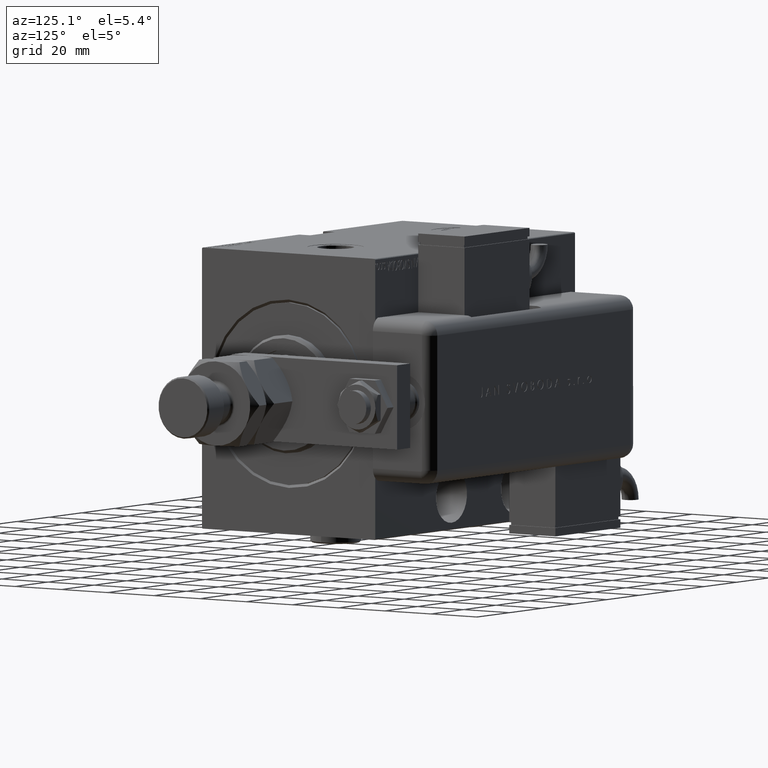
[diagram: clean part render]
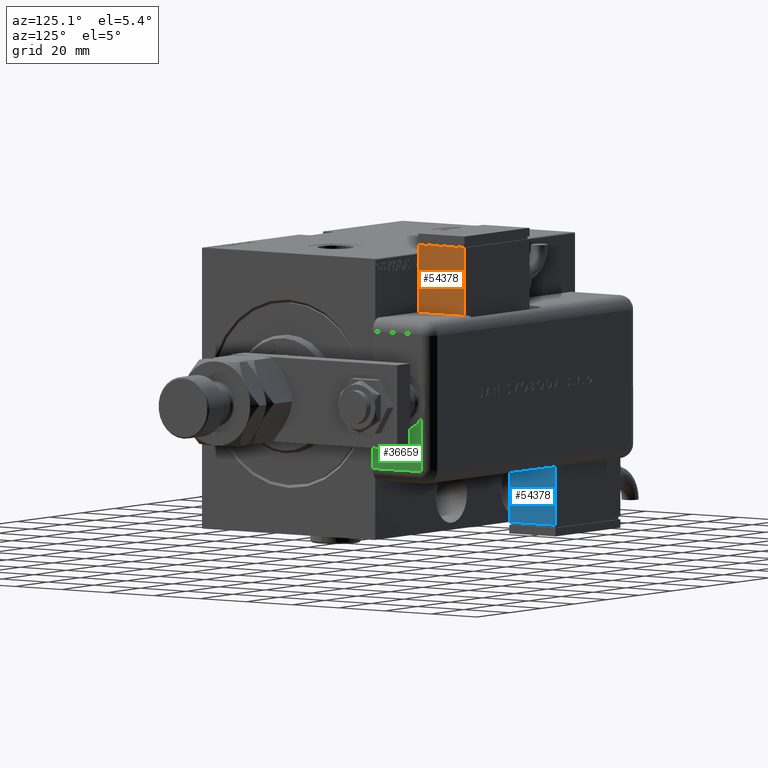
[diagram: same view with three faces highlighted in distinct colors, each labeled with its STEP entity id]
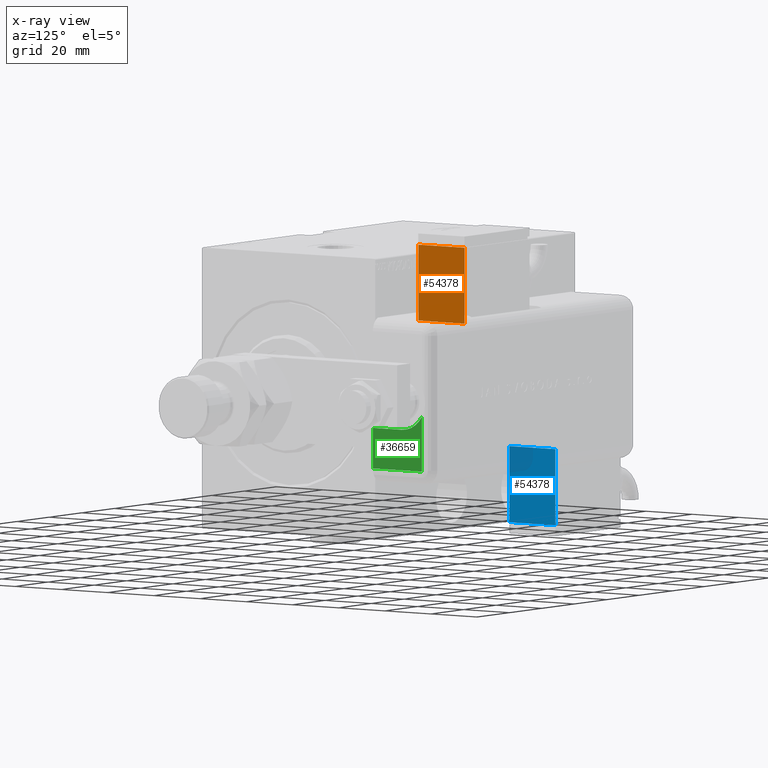
[diagram: x-ray of the same camera — body ghosted, the three highlighted faces saturated]
A machine part, auxiliary view with three faces highlighted in distinct colors.
The next image is the same camera in x-ray (body ghosted, the three faces saturated) — at least one of them is partly hidden behind the body in this view.
Their STEP definitions:

[orange] entity #54378 — the highlighted planar face has unit normal (-1, 0, 0).
#182 = CARTESIAN_POINT ( 'NONE',  ( 20.00000000000005329, -13.49999999999996092, 10.00000000000000000 ) ) ;
#2211 = VERTEX_POINT ( 'NONE', #23601 ) ;
#2471 = CARTESIAN_POINT ( 'NONE',  ( 20.00000000000005329, -13.49999999999996092, 10.00000000000000000 ) ) ;
#4457 = LINE ( 'NONE', #56988, #11107 ) ;
#7614 = EDGE_CURVE ( 'NONE', #8226, #2211, #4457, .T. ) ;
#8226 = VERTEX_POINT ( 'NONE', #182 ) ;
#10026 = VECTOR ( 'NONE', #17026, 1000.000000000000000 ) ;
#11107 = VECTOR ( 'NONE', #47907, 1000.000000000000000 ) ;
#12356 = LINE ( 'NONE', #41432, #10026 ) ;
#13466 = VERTEX_POINT ( 'NONE', #57032 ) ;
#15122 = DIRECTION ( 'NONE',  ( -1.000000000000000000, 1.284980352575412699E-16, 0.000000000000000000 ) ) ;
#17026 = DIRECTION ( 'NONE',  ( 1.284980352575412699E-16, 1.000000000000000000, 0.000000000000000000 ) ) ;
#22041 = ORIENTED_EDGE ( 'NONE', *, *, #45837, .F. ) ;
#23601 = CARTESIAN_POINT ( 'NONE',  ( 20.00000000000005329, -13.49999999999996092, -10.00000000000000000 ) ) ;
#23698 = VECTOR ( 'NONE', #41279, 1000.000000000000000 ) ;
#24807 = PLANE ( 'NONE',  #45508 ) ;
#28909 = DIRECTION ( 'NONE',  ( -1.284980352575412699E-16, -1.000000000000000000, 0.000000000000000000 ) ) ;
#29102 = CARTESIAN_POINT ( 'NONE',  ( 20.00000000000005684, 13.50000000000003730, 10.00000000000000000 ) ) ;
#30693 = ORIENTED_EDGE ( 'NONE', *, *, #7614, .T. ) ;
#31903 = LINE ( 'NONE', #55990, #23698 ) ;
#32824 = VERTEX_POINT ( 'NONE', #29102 ) ;
#33742 = EDGE_CURVE ( 'NONE', #2211, #13466, #12356, .T. ) ;
#38589 = FACE_OUTER_BOUND ( 'NONE', #45657, .T. ) ;
#41279 = DIRECTION ( 'NONE',  ( -0.000000000000000000, -0.000000000000000000, -1.000000000000000000 ) ) ;
#41432 = CARTESIAN_POINT ( 'NONE',  ( 20.00000000000005329, -13.49999999999996092, -10.00000000000000000 ) ) ;
#45298 = LINE ( 'NONE', #2471, #51428 ) ;
#45508 = AXIS2_PLACEMENT_3D ( 'NONE', #57981, #15122, #28909 ) ;
#45657 = EDGE_LOOP ( 'NONE', ( #50371, #50780, #22041, #30693 ) ) ;
#45837 = EDGE_CURVE ( 'NONE', #8226, #32824, #45298, .T. ) ;
#45918 = DIRECTION ( 'NONE',  ( 1.284980352575412699E-16, 1.000000000000000000, 0.000000000000000000 ) ) ;
#47907 = DIRECTION ( 'NONE',  ( -0.000000000000000000, -0.000000000000000000, -1.000000000000000000 ) ) ;
#50371 = ORIENTED_EDGE ( 'NONE', *, *, #33742, .T. ) ;
#50780 = ORIENTED_EDGE ( 'NONE', *, *, #58039, .F. ) ;
#51428 = VECTOR ( 'NONE', #45918, 1000.000000000000000 ) ;
#54378 = ADVANCED_FACE ( 'NONE', ( #38589 ), #24807, .F. ) ;
#55990 = CARTESIAN_POINT ( 'NONE',  ( 20.00000000000005684, 13.50000000000003730, 10.00000000000000000 ) ) ;
#56988 = CARTESIAN_POINT ( 'NONE',  ( 20.00000000000005329, -13.49999999999996092, 10.00000000000000000 ) ) ;
#57032 = CARTESIAN_POINT ( 'NONE',  ( 20.00000000000005684, 13.50000000000003730, -10.00000000000000000 ) ) ;
#57981 = CARTESIAN_POINT ( 'NONE',  ( 20.00000000000005329, -13.49999999999996092, 10.00000000000000000 ) ) ;
#58039 = EDGE_CURVE ( 'NONE', #32824, #13466, #31903, .T. ) ;

[blue] entity #54378 — the highlighted planar face has unit normal (-1, -0, 0).
#182 = CARTESIAN_POINT ( 'NONE',  ( 20.00000000000005329, -13.49999999999996092, 10.00000000000000000 ) ) ;
#2211 = VERTEX_POINT ( 'NONE', #23601 ) ;
#2471 = CARTESIAN_POINT ( 'NONE',  ( 20.00000000000005329, -13.49999999999996092, 10.00000000000000000 ) ) ;
#4457 = LINE ( 'NONE', #56988, #11107 ) ;
#7614 = EDGE_CURVE ( 'NONE', #8226, #2211, #4457, .T. ) ;
#8226 = VERTEX_POINT ( 'NONE', #182 ) ;
#10026 = VECTOR ( 'NONE', #17026, 1000.000000000000000 ) ;
#11107 = VECTOR ( 'NONE', #47907, 1000.000000000000000 ) ;
#12356 = LINE ( 'NONE', #41432, #10026 ) ;
#13466 = VERTEX_POINT ( 'NONE', #57032 ) ;
#15122 = DIRECTION ( 'NONE',  ( -1.000000000000000000, 1.284980352575412699E-16, 0.000000000000000000 ) ) ;
#17026 = DIRECTION ( 'NONE',  ( 1.284980352575412699E-16, 1.000000000000000000, 0.000000000000000000 ) ) ;
#22041 = ORIENTED_EDGE ( 'NONE', *, *, #45837, .F. ) ;
#23601 = CARTESIAN_POINT ( 'NONE',  ( 20.00000000000005329, -13.49999999999996092, -10.00000000000000000 ) ) ;
#23698 = VECTOR ( 'NONE', #41279, 1000.000000000000000 ) ;
#24807 = PLANE ( 'NONE',  #45508 ) ;
#28909 = DIRECTION ( 'NONE',  ( -1.284980352575412699E-16, -1.000000000000000000, 0.000000000000000000 ) ) ;
#29102 = CARTESIAN_POINT ( 'NONE',  ( 20.00000000000005684, 13.50000000000003730, 10.00000000000000000 ) ) ;
#30693 = ORIENTED_EDGE ( 'NONE', *, *, #7614, .T. ) ;
#31903 = LINE ( 'NONE', #55990, #23698 ) ;
#32824 = VERTEX_POINT ( 'NONE', #29102 ) ;
#33742 = EDGE_CURVE ( 'NONE', #2211, #13466, #12356, .T. ) ;
#38589 = FACE_OUTER_BOUND ( 'NONE', #45657, .T. ) ;
#41279 = DIRECTION ( 'NONE',  ( -0.000000000000000000, -0.000000000000000000, -1.000000000000000000 ) ) ;
#41432 = CARTESIAN_POINT ( 'NONE',  ( 20.00000000000005329, -13.49999999999996092, -10.00000000000000000 ) ) ;
#45298 = LINE ( 'NONE', #2471, #51428 ) ;
#45508 = AXIS2_PLACEMENT_3D ( 'NONE', #57981, #15122, #28909 ) ;
#45657 = EDGE_LOOP ( 'NONE', ( #50371, #50780, #22041, #30693 ) ) ;
#45837 = EDGE_CURVE ( 'NONE', #8226, #32824, #45298, .T. ) ;
#45918 = DIRECTION ( 'NONE',  ( 1.284980352575412699E-16, 1.000000000000000000, 0.000000000000000000 ) ) ;
#47907 = DIRECTION ( 'NONE',  ( -0.000000000000000000, -0.000000000000000000, -1.000000000000000000 ) ) ;
#50371 = ORIENTED_EDGE ( 'NONE', *, *, #33742, .T. ) ;
#50780 = ORIENTED_EDGE ( 'NONE', *, *, #58039, .F. ) ;
#51428 = VECTOR ( 'NONE', #45918, 1000.000000000000000 ) ;
#54378 = ADVANCED_FACE ( 'NONE', ( #38589 ), #24807, .F. ) ;
#55990 = CARTESIAN_POINT ( 'NONE',  ( 20.00000000000005684, 13.50000000000003730, 10.00000000000000000 ) ) ;
#56988 = CARTESIAN_POINT ( 'NONE',  ( 20.00000000000005329, -13.49999999999996092, 10.00000000000000000 ) ) ;
#57032 = CARTESIAN_POINT ( 'NONE',  ( 20.00000000000005684, 13.50000000000003730, -10.00000000000000000 ) ) ;
#57981 = CARTESIAN_POINT ( 'NONE',  ( 20.00000000000005329, -13.49999999999996092, 10.00000000000000000 ) ) ;
#58039 = EDGE_CURVE ( 'NONE', #32824, #13466, #31903, .T. ) ;

[green] entity #36659 — the highlighted planar face has unit normal (1, 0, 0).
#880 = DIRECTION ( 'NONE',  ( 1.000000000000000000, 0.000000000000000000, 0.000000000000000000 ) ) ;
#2780 = EDGE_LOOP ( 'NONE', ( #19433, #13736, #34885, #3536, #20026, #52907 ) ) ;
#2877 = EDGE_CURVE ( 'NONE', #27782, #59359, #38875, .T. ) ;
#3536 = ORIENTED_EDGE ( 'NONE', *, *, #58673, .T. ) ;
#3803 = VECTOR ( 'NONE', #58831, 1000.000000000000000 ) ;
#6917 = VERTEX_POINT ( 'NONE', #11787 ) ;
#9581 = DIRECTION ( 'NONE',  ( 1.000000000000000000, 0.000000000000000000, -0.000000000000000000 ) ) ;
#11787 = CARTESIAN_POINT ( 'NONE',  ( 23.99999999999999289, 21.21742430504414045, 127.0000000000000000 ) ) ;
#11885 = DIRECTION ( 'NONE',  ( 0.000000000000000000, 0.000000000000000000, 1.000000000000000000 ) ) ;
#13736 = ORIENTED_EDGE ( 'NONE', *, *, #51749, .F. ) ;
#15383 = CARTESIAN_POINT ( 'NONE',  ( 4.899643580265684584, 21.21742430504414045, 127.0000000000000000 ) ) ;
#15478 = AXIS2_PLACEMENT_3D ( 'NONE', #55048, #11885, #41274 ) ;
#18432 = CARTESIAN_POINT ( 'NONE',  ( -28.99999999999999645, -9.421223957302265857E-15, 127.0000000000000000 ) ) ;
#18470 = VECTOR ( 'NONE', #58099, 1000.000000000000000 ) ;
#18951 = DIRECTION ( 'NONE',  ( 0.000000000000000000, 0.000000000000000000, 1.000000000000000000 ) ) ;
#19433 = ORIENTED_EDGE ( 'NONE', *, *, #2877, .F. ) ;
#19626 = CARTESIAN_POINT ( 'NONE',  ( -1.734723475976807094E-15, 12.49999964024999599, 127.0000000000000000 ) ) ;
#20026 = ORIENTED_EDGE ( 'NONE', *, *, #52004, .T. ) ;
#20605 = VECTOR ( 'NONE', #43447, 1000.000000000000000 ) ;
#22686 = VERTEX_POINT ( 'NONE', #40812 ) ;
#24149 = CARTESIAN_POINT ( 'NONE',  ( 9.999999999999998224, 12.49999964024999599, 127.0000000000000000 ) ) ;
#26422 = CARTESIAN_POINT ( 'NONE',  ( 24.41742430504415751, -9.421223957302265857E-15, 127.0000000000000000 ) ) ;
#27089 = VERTEX_POINT ( 'NONE', #39349 ) ;
#27782 = VERTEX_POINT ( 'NONE', #59118 ) ;
#27902 = LINE ( 'NONE', #24149, #29608 ) ;
#28894 = AXIS2_PLACEMENT_3D ( 'NONE', #19626, #43398, #880 ) ;
#29125 = AXIS2_PLACEMENT_3D ( 'NONE', #53642, #18951, #9581 ) ;
#29608 = VECTOR ( 'NONE', #61682, 1000.000000000000000 ) ;
#34762 = LINE ( 'NONE', #35366, #3803 ) ;
#34885 = ORIENTED_EDGE ( 'NONE', *, *, #55886, .T. ) ;
#35366 = CARTESIAN_POINT ( 'NONE',  ( 24.41742430504415751, 20.79999999999998295, 127.0000000000000000 ) ) ;
#36659 = ADVANCED_FACE ( 'NONE', ( #43344 ), #42721, .T. ) ;
#38875 = CIRCLE ( 'NONE', #28894, 10.00000000000000178 ) ;
#39349 = CARTESIAN_POINT ( 'NONE',  ( 10.00000000000000178, -8.673617379884035472E-16, 127.0000000000000000 ) ) ;
#40414 = CIRCLE ( 'NONE', #15478, 0.4174243050441631131 ) ;
#40812 = CARTESIAN_POINT ( 'NONE',  ( 24.41742430504415751, 20.79999999999998295, 127.0000000000000000 ) ) ;
#41274 = DIRECTION ( 'NONE',  ( 1.000000000000000000, 0.000000000000000000, 0.000000000000000000 ) ) ;
#42721 = PLANE ( 'NONE',  #29125 ) ;
#43344 = FACE_OUTER_BOUND ( 'NONE', #2780, .T. ) ;
#43398 = DIRECTION ( 'NONE',  ( 0.000000000000000000, 0.000000000000000000, 1.000000000000000000 ) ) ;
#43447 = DIRECTION ( 'NONE',  ( 1.000000000000000000, 0.000000000000000000, 0.000000000000000000 ) ) ;
#44617 = CARTESIAN_POINT ( 'NONE',  ( -23.99999999999999289, 21.21742430504414045, 127.0000000000000000 ) ) ;
#46130 = EDGE_CURVE ( 'NONE', #6917, #59359, #49021, .T. ) ;
#49021 = LINE ( 'NONE', #44617, #18470 ) ;
#51749 = EDGE_CURVE ( 'NONE', #27089, #27782, #27902, .T. ) ;
#52004 = EDGE_CURVE ( 'NONE', #22686, #6917, #40414, .T. ) ;
#52720 = VERTEX_POINT ( 'NONE', #26422 ) ;
#52907 = ORIENTED_EDGE ( 'NONE', *, *, #46130, .T. ) ;
#53642 = CARTESIAN_POINT ( 'NONE',  ( 23.99999999999999289, 20.79999999999998295, 127.0000000000000000 ) ) ;
#55048 = CARTESIAN_POINT ( 'NONE',  ( 23.99999999999999289, 20.79999999999998295, 127.0000000000000000 ) ) ;
#55886 = EDGE_CURVE ( 'NONE', #27089, #52720, #61291, .T. ) ;
#58099 = DIRECTION ( 'NONE',  ( -1.000000000000000000, 0.000000000000000000, -0.000000000000000000 ) ) ;
#58673 = EDGE_CURVE ( 'NONE', #52720, #22686, #34762, .T. ) ;
#58831 = DIRECTION ( 'NONE',  ( 0.000000000000000000, 1.000000000000000000, -0.000000000000000000 ) ) ;
#59118 = CARTESIAN_POINT ( 'NONE',  ( 10.00000000000000000, 12.49999964024999599, 127.0000000000000000 ) ) ;
#59359 = VERTEX_POINT ( 'NONE', #15383 ) ;
#61291 = LINE ( 'NONE', #18432, #20605 ) ;
#61682 = DIRECTION ( 'NONE',  ( -2.775557641443440638E-16, 1.000000000000000000, -0.000000000000000000 ) ) ;